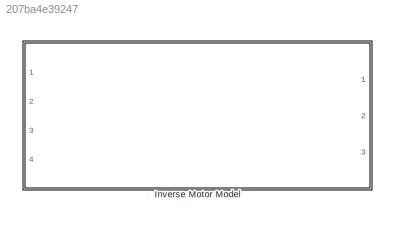
MODEL slx_207ba4e39247
KIND model
CONFIG AbsTol = auto
CONFIG EnableMultiTasking = off
CONFIG FixedStep = auto
CONFIG MaxStep = auto
CONFIG MinStep = auto
CONFIG RelTol = 1e-3
CONFIG SampleTimeConstraint = Unconstrained
CONFIG Solver = VariableStepAuto
CONFIG SolverName = VariableStepAuto
CONFIG StartTime = 0.0
CONFIG StopTime = 10.0
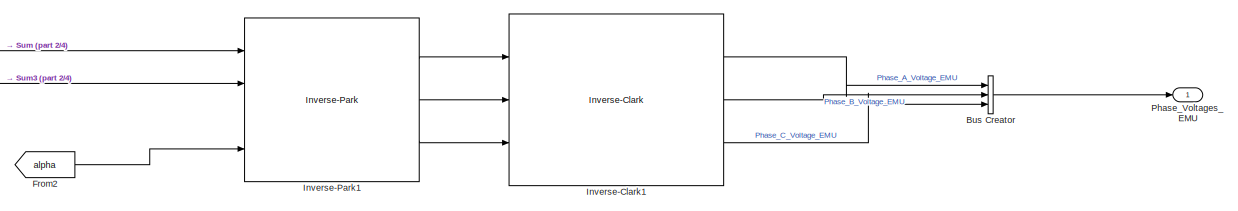
[diagram: Inverse Motor Model - part 1/4, top right region]
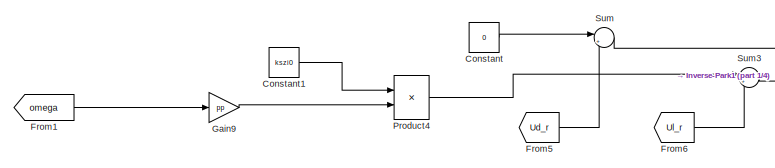
[diagram: Inverse Motor Model - part 2/4, top center region]
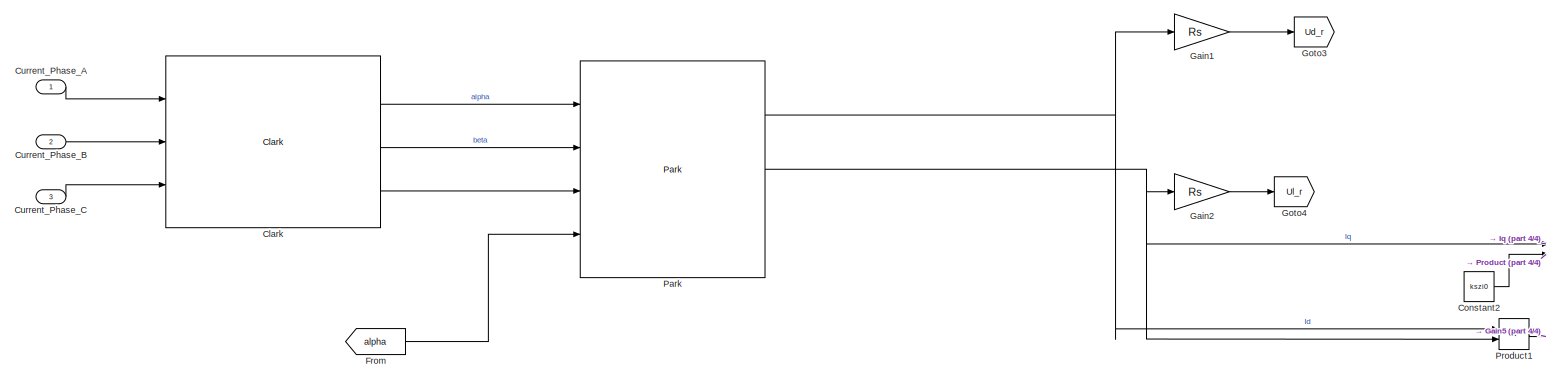
[diagram: Inverse Motor Model - part 3/4, bottom left region]
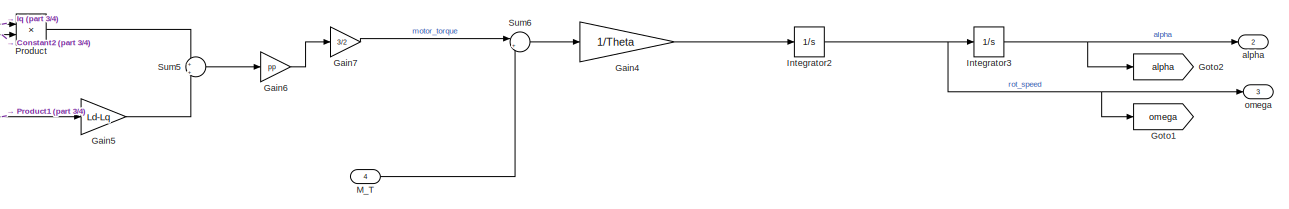
[diagram: Inverse Motor Model - part 4/4, bottom center region]
BLOCK [SubSystem] Inverse Motor Model
  Ports = [4, 3]
  RequestExecContextInheritance = off
BLOCK [BusCreator] Inverse Motor Model/Bus Creator
  DisplayOption = bar
  InheritFromInputs = on
  Inputs = 3
  Ports = [3, 1]
BLOCK [Reference] Inverse Motor Model/Clark  REF=coordinate_transformations/Clark  (lib defined in slx_d357c885b4a9)
  Ports = [3, 3]
  SourceBlock = coordinate_transformations/Clark
  SourceType = SubSystem
BLOCK [Constant] Inverse Motor Model/Constant
  Value = 0
BLOCK [Constant] Inverse Motor Model/Constant1
  Value = kszi0
BLOCK [Constant] Inverse Motor Model/Constant2
  Value = kszi0
BLOCK [Inport] Inverse Motor Model/Current_Phase_A
  IconDisplay = Port number
BLOCK [Inport] Inverse Motor Model/Current_Phase_B
  IconDisplay = Port number
  Port = 2
BLOCK [Inport] Inverse Motor Model/Current_Phase_C
  IconDisplay = Port number
  Port = 3
BLOCK [From] Inverse Motor Model/From
  GotoTag = alpha
BLOCK [From] Inverse Motor Model/From1
  GotoTag = omega
BLOCK [From] Inverse Motor Model/From2
  GotoTag = alpha
BLOCK [From] Inverse Motor Model/From5
  GotoTag = Ud_r
BLOCK [From] Inverse Motor Model/From6
  GotoTag = Ul_r
BLOCK [Gain] Inverse Motor Model/Gain1
  Gain = Rs
  OutDataTypeStr = Inherit: Inherit via internal rule
  ParamDataTypeStr = Inherit: Inherit via internal rule
  SaturateOnIntegerOverflow = off
BLOCK [Gain] Inverse Motor Model/Gain2
  Gain = Rs
  OutDataTypeStr = Inherit: Inherit via internal rule
  ParamDataTypeStr = Inherit: Inherit via internal rule
  SaturateOnIntegerOverflow = off
BLOCK [Gain] Inverse Motor Model/Gain4
  Gain = 1/Theta
  OutDataTypeStr = Inherit: Inherit via internal rule
  ParamDataTypeStr = Inherit: Inherit via internal rule
  SaturateOnIntegerOverflow = off
BLOCK [Gain] Inverse Motor Model/Gain5
  Gain = Ld-Lq
  OutDataTypeStr = Inherit: Inherit via internal rule
  ParamDataTypeStr = Inherit: Inherit via internal rule
  SaturateOnIntegerOverflow = off
BLOCK [Gain] Inverse Motor Model/Gain6
  Gain = pp
  OutDataTypeStr = Inherit: Inherit via internal rule
  ParamDataTypeStr = Inherit: Inherit via internal rule
  SaturateOnIntegerOverflow = off
BLOCK [Gain] Inverse Motor Model/Gain7
  Gain = 3/2
  OutDataTypeStr = Inherit: Inherit via internal rule
  ParamDataTypeStr = Inherit: Inherit via internal rule
  SaturateOnIntegerOverflow = off
BLOCK [Gain] Inverse Motor Model/Gain9
  Gain = pp
  OutDataTypeStr = Inherit: Inherit via internal rule
  ParamDataTypeStr = Inherit: Inherit via internal rule
  SaturateOnIntegerOverflow = off
BLOCK [Goto] Inverse Motor Model/Goto1
  GotoTag = omega
BLOCK [Goto] Inverse Motor Model/Goto2
  GotoTag = alpha
BLOCK [Goto] Inverse Motor Model/Goto3
  GotoTag = Ud_r
BLOCK [Goto] Inverse Motor Model/Goto4
  GotoTag = Ul_r
BLOCK [Integrator] Inverse Motor Model/Integrator2
  Ports = [1, 1]
BLOCK [Integrator] Inverse Motor Model/Integrator3
  Ports = [1, 1]
BLOCK [Reference] Inverse Motor Model/Inverse-Clark1  REF=coordinate_transformations/Inverse-Clark  (lib defined in slx_d357c885b4a9)
  Ports = [3, 3]
  SourceBlock = coordinate_transformations/Inverse-Clark
  SourceType = SubSystem
BLOCK [Reference] Inverse Motor Model/Inverse-Park1  REF=coordinate_transformations/Inverse-Park  (lib defined in slx_d357c885b4a9)
  Ports = [4, 3]
  SourceBlock = coordinate_transformations/Inverse-Park
  SourceType = SubSystem
BLOCK [Inport] Inverse Motor Model/M_T
  IconDisplay = Port number
  Port = 4
BLOCK [Reference] Inverse Motor Model/Park  REF=coordinate_transformations/Park  (lib defined in slx_d357c885b4a9)
  Ports = [4, 3]
  SourceBlock = coordinate_transformations/Park
  SourceType = SubSystem
BLOCK [Outport] Inverse Motor Model/Phase_Voltages_EMU
  IconDisplay = Port number
BLOCK [Product] Inverse Motor Model/Product
  InputSameDT = off
  OutDataTypeStr = Inherit: Inherit via internal rule
  Ports = [2, 1]
  RndMeth = Floor
  SaturateOnIntegerOverflow = off
BLOCK [Product] Inverse Motor Model/Product1
  InputSameDT = off
  OutDataTypeStr = Inherit: Inherit via internal rule
  Ports = [2, 1]
  RndMeth = Floor
  SaturateOnIntegerOverflow = off
BLOCK [Product] Inverse Motor Model/Product4
  InputSameDT = off
  OutDataTypeStr = Inherit: Inherit via internal rule
  Ports = [2, 1]
  RndMeth = Floor
  SaturateOnIntegerOverflow = off
BLOCK [Sum] Inverse Motor Model/Sum
  IconShape = round
  InputSameDT = off
  Inputs = |++
  OutDataTypeStr = Inherit: Inherit via internal rule
  Ports = [2, 1]
  SaturateOnIntegerOverflow = off
BLOCK [Sum] Inverse Motor Model/Sum3
  IconShape = round
  InputSameDT = off
  Inputs = |++
  OutDataTypeStr = Inherit: Inherit via internal rule
  Ports = [2, 1]
  SaturateOnIntegerOverflow = off
BLOCK [Sum] Inverse Motor Model/Sum5
  IconShape = round
  InputSameDT = off
  Inputs = +|+
  OutDataTypeStr = Inherit: Inherit via internal rule
  Ports = [2, 1]
  SaturateOnIntegerOverflow = off
BLOCK [Sum] Inverse Motor Model/Sum6
  IconShape = round
  InputSameDT = off
  Inputs = |+-
  OutDataTypeStr = Inherit: Inherit via internal rule
  Ports = [2, 1]
  SaturateOnIntegerOverflow = off
BLOCK [Outport] Inverse Motor Model/alpha
  IconDisplay = Port number
  Port = 2
BLOCK [Outport] Inverse Motor Model/omega
  IconDisplay = Port number
  Port = 3
LINE Inverse Motor Model/Bus Creator:1 -> Inverse Motor Model/Phase_Voltages_EMU:1
LINE Inverse Motor Model/Clark:1 -> Inverse Motor Model/Park:1
LINE Inverse Motor Model/Clark:2 -> Inverse Motor Model/Park:2
LINE Inverse Motor Model/Clark:3 -> Inverse Motor Model/Park:3
LINE Inverse Motor Model/Constant1:1 -> Inverse Motor Model/Product4:1
LINE Inverse Motor Model/Constant2:1 -> Inverse Motor Model/Product:2
LINE Inverse Motor Model/Constant:1 -> Inverse Motor Model/Sum:1
LINE Inverse Motor Model/Current_Phase_A:1 -> Inverse Motor Model/Clark:1
LINE Inverse Motor Model/Current_Phase_B:1 -> Inverse Motor Model/Clark:2
LINE Inverse Motor Model/Current_Phase_C:1 -> Inverse Motor Model/Clark:3
LINE Inverse Motor Model/From1:1 -> Inverse Motor Model/Gain9:1
LINE Inverse Motor Model/From2:1 -> Inverse Motor Model/Inverse-Park1:4
LINE Inverse Motor Model/From5:1 -> Inverse Motor Model/Sum:2
LINE Inverse Motor Model/From6:1 -> Inverse Motor Model/Sum3:2
LINE Inverse Motor Model/From:1 -> Inverse Motor Model/Park:4
LINE Inverse Motor Model/Gain1:1 -> Inverse Motor Model/Goto3:1
LINE Inverse Motor Model/Gain2:1 -> Inverse Motor Model/Goto4:1
LINE Inverse Motor Model/Gain4:1 -> Inverse Motor Model/Integrator2:1
LINE Inverse Motor Model/Gain5:1 -> Inverse Motor Model/Sum5:2
LINE Inverse Motor Model/Gain6:1 -> Inverse Motor Model/Gain7:1
LINE Inverse Motor Model/Gain7:1 -> Inverse Motor Model/Sum6:1
LINE Inverse Motor Model/Gain9:1 -> Inverse Motor Model/Product4:2
NET Inverse Motor Model/Integrator2:1 -> Inverse Motor Model/Goto1:1, Inverse Motor Model/Integrator3:1, Inverse Motor Model/omega:1
NET Inverse Motor Model/Integrator3:1 -> Inverse Motor Model/Goto2:1, Inverse Motor Model/alpha:1
LINE Inverse Motor Model/Inverse-Clark1:1 -> Inverse Motor Model/Bus Creator:1
LINE Inverse Motor Model/Inverse-Clark1:2 -> Inverse Motor Model/Bus Creator:2
LINE Inverse Motor Model/Inverse-Clark1:3 -> Inverse Motor Model/Bus Creator:3
LINE Inverse Motor Model/Inverse-Park1:1 -> Inverse Motor Model/Inverse-Clark1:1
LINE Inverse Motor Model/Inverse-Park1:2 -> Inverse Motor Model/Inverse-Clark1:2
LINE Inverse Motor Model/Inverse-Park1:3 -> Inverse Motor Model/Inverse-Clark1:3
LINE Inverse Motor Model/M_T:1 -> Inverse Motor Model/Sum6:2
NET Inverse Motor Model/Park:1 -> Inverse Motor Model/Gain1:1, Inverse Motor Model/Product1:1
NET Inverse Motor Model/Park:2 -> Inverse Motor Model/Gain2:1, Inverse Motor Model/Product1:2, Inverse Motor Model/Product:1
LINE Inverse Motor Model/Product1:1 -> Inverse Motor Model/Gain5:1
LINE Inverse Motor Model/Product4:1 -> Inverse Motor Model/Sum3:1
LINE Inverse Motor Model/Product:1 -> Inverse Motor Model/Sum5:1
LINE Inverse Motor Model/Sum3:1 -> Inverse Motor Model/Inverse-Park1:2
LINE Inverse Motor Model/Sum5:1 -> Inverse Motor Model/Gain6:1
LINE Inverse Motor Model/Sum6:1 -> Inverse Motor Model/Gain4:1
LINE Inverse Motor Model/Sum:1 -> Inverse Motor Model/Inverse-Park1:1
note: NET lines group one-source signal fan-out (src -> all destinations, sorted); 1:1 wires keep LINE
